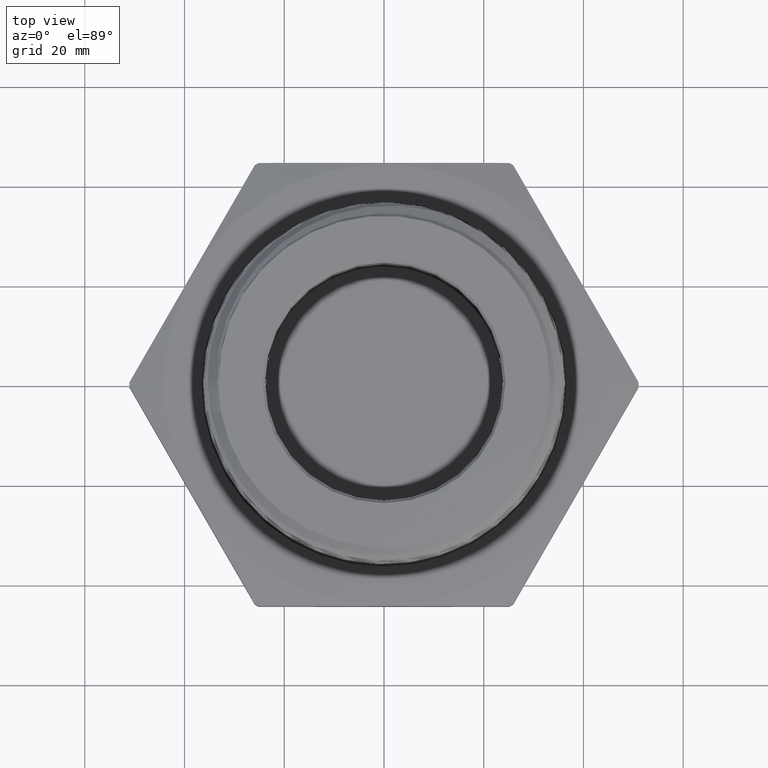
[diagram: clean part render]
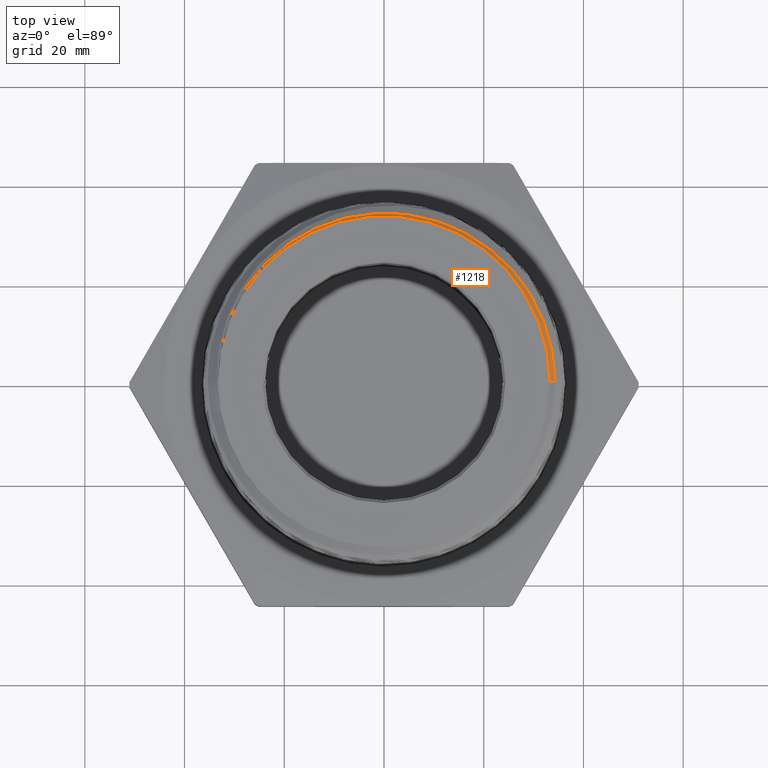
[diagram: same view with one face highlighted and labeled with its STEP entity id]
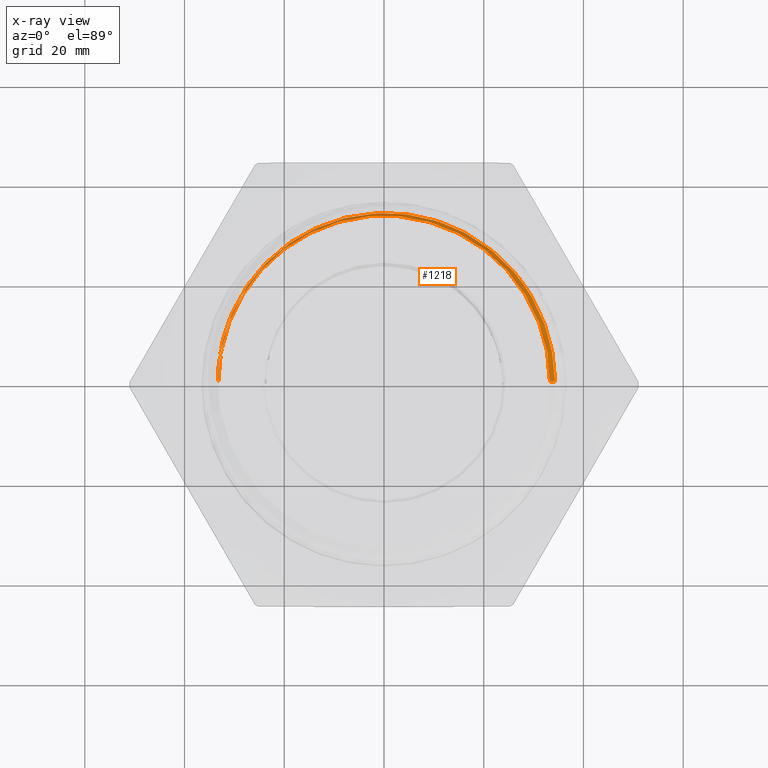
[diagram: x-ray of the same camera — body ghosted, the highlighted face saturated]
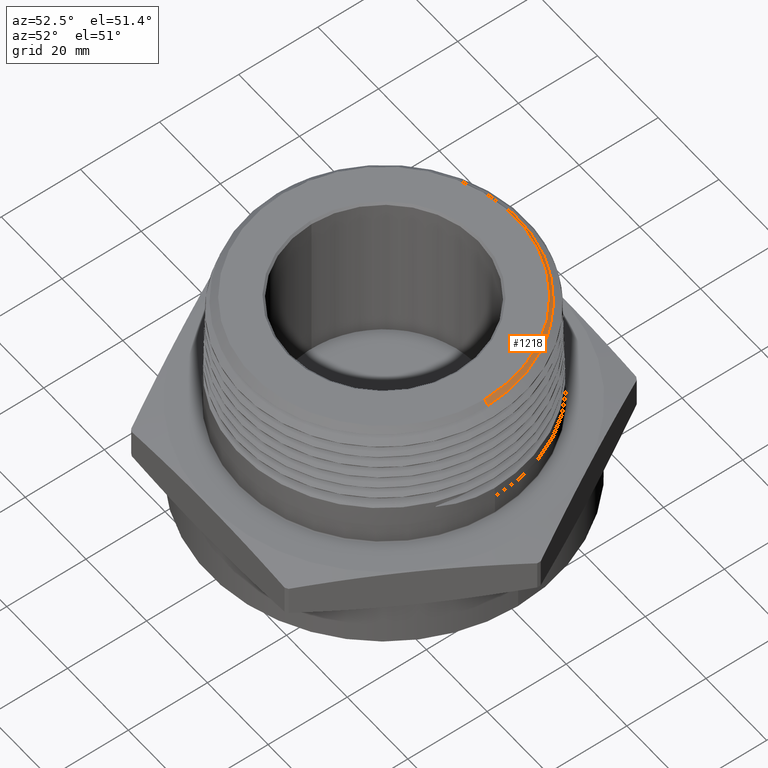
[diagram: same view with one face highlighted and labeled with its STEP entity id]
A machine part, top view. The second image highlights one B-rep face of the part: STEP entity #1218.
The next image is the same camera in x-ray: the body ghosted, the highlighted face saturated — about 0% of this face is hidden behind the body in this view.
A second angle (auxiliary view) of the same face is appended — the face is thin or edge-on in the first view.
In plain terms, the highlighted conical surface has half-angle 45 deg.
Its self-contained STEP definition (entity closure, byte-faithful):
#37 = CARTESIAN_POINT ( 'NONE',  ( -1.309765000000000100, 0.0000000000000000000, 1.729999999999999800 ) ) ;
#38 = CARTESIAN_POINT ( 'NONE',  ( 1.309765000000000100, 1.653900943077713700E-016, 1.729999999999999800 ) ) ;
#41 = CARTESIAN_POINT ( 'NONE',  ( 1.350563691224693400, 3.244069492476312400E-016, 1.689201308775306200 ) ) ;
#42 = CARTESIAN_POINT ( 'NONE',  ( -1.306956596995486200, 0.1079374020897158200, 1.728358873279563400 ) ) ;
#43 = CARTESIAN_POINT ( 'NONE',  ( -1.311368873181038200, -1.536664496436148200E-016, 1.728396126818961800 ) ) ;
#237 = CARTESIAN_POINT ( 'NONE',  ( 0.09171455139226268600, 1.328348164124692800, 1.708425787367620700 ) ) ;
#238 = CARTESIAN_POINT ( 'NONE',  ( -0.01499674576504651100, 1.332971324827752800, 1.709450535089585200 ) ) ;
#239 = CARTESIAN_POINT ( 'NONE',  ( -0.09962915556131633800, 1.328472396097577100, 1.710266008922226100 ) ) ;
#240 = CARTESIAN_POINT ( 'NONE',  ( -0.2045178724778831700, 1.312813820658020200, 1.711285472085118500 ) ) ;
#241 = CARTESIAN_POINT ( 'NONE',  ( -0.2254501201297382800, 1.309175857946777200, 1.711489515050243600 ) ) ;
#242 = CARTESIAN_POINT ( 'NONE',  ( -0.2672223711880851700, 1.300873673064138100, 1.711899536499993400 ) ) ;
#243 = CARTESIAN_POINT ( 'NONE',  ( -0.2881105984686753200, 1.296196745108849000, 1.712106226430594400 ) ) ;
#244 = CARTESIAN_POINT ( 'NONE',  ( -0.3502644105605982100, 1.280692346967210500, 1.712725269959481700 ) ) ;
#245 = CARTESIAN_POINT ( 'NONE',  ( -0.3908858841510702800, 1.268440780603415700, 1.713134560490398900 ) ) ;
#246 = CARTESIAN_POINT ( 'NONE',  ( -0.5103820960312883700, 1.226116626902534300, 1.714355627185536900 ) ) ;
#247 = CARTESIAN_POINT ( 'NONE',  ( -0.5869061454908270900, 1.190516024693061700, 1.715170198889191900 ) ) ;
#248 = CARTESIAN_POINT ( 'NONE',  ( -0.6785553947824517500, 1.136595056120337100, 1.716196526029136700 ) ) ;
#249 = CARTESIAN_POINT ( 'NONE',  ( -0.6967223633253463200, 1.125309764672333300, 1.716402690030068000 ) ) ;
#250 = CARTESIAN_POINT ( 'NONE',  ( -0.7324562631169324600, 1.101889326113928200, 1.716815284475095000 ) ) ;
#251 = CARTESIAN_POINT ( 'NONE',  ( -0.7499694778615492200, 1.089792127107236400, 1.717021340399600000 ) ) ;
#252 = CARTESIAN_POINT ( 'NONE',  ( -0.8014688204809044000, 1.052362458847585100, 1.717638765886303300 ) ) ;
#253 = CARTESIAN_POINT ( 'NONE',  ( -0.8344177493217346300, 1.025895297103959700, 1.718048327048187400 ) ) ;
#254 = CARTESIAN_POINT ( 'NONE',  ( -0.8975977870280595900, 0.9699877094381267300, 1.718864259484525400 ) ) ;
#255 = CARTESIAN_POINT ( 'NONE',  ( -0.9278283698502799400, 0.9405467181313209600, 1.719271330014622500 ) ) ;
#256 = CARTESIAN_POINT ( 'NONE',  ( -0.9855389948041972700, 0.8786558363991053800, 1.720093408768793600 ) ) ;
#257 = CARTESIAN_POINT ( 'NONE',  ( -1.013076711283218200, 0.8461340283151540500, 1.720507316225983600 ) ) ;
#258 = CARTESIAN_POINT ( 'NONE',  ( -1.091054843264708900, 0.7443578989606399700, 1.721749889967262500 ) ) ;
#259 = CARTESIAN_POINT ( 'NONE',  ( -1.135684543815285600, 0.6725675503749891600, 1.722569315257796100 ) ) ;
#260 = CARTESIAN_POINT ( 'NONE',  ( -1.191996973169151100, 0.5591877950740498100, 1.723798712832855800 ) ) ;
#261 = CARTESIAN_POINT ( 'NONE',  ( -1.208983547336436300, 0.5204389572300395200, 1.724208089083593600 ) ) ;
#262 = CARTESIAN_POINT ( 'NONE',  ( -1.239295579900556100, 0.4409806146601624700, 1.725037082598783100 ) ) ;
#263 = CARTESIAN_POINT ( 'NONE',  ( -1.252632852184172500, 0.4001629858635762900, 1.725455965367784100 ) ) ;
#264 = CARTESIAN_POINT ( 'NONE',  ( -1.286333874885571900, 0.2770088677711267700, 1.726698438830986100 ) ) ;
#265 = CARTESIAN_POINT ( 'NONE',  ( -1.300744609113325900, 0.1932935772440260400, 1.727524406184969300 ) ) ;
#266 = CARTESIAN_POINT ( 'NONE',  ( -1.306956596995486200, 0.1079374020897158200, 1.728358873279563400 ) ) ;
#268 = CARTESIAN_POINT ( 'NONE',  ( -1.311382881187556700, 0.03598164747442271500, 1.728382118812443300 ) ) ;
#269 = CARTESIAN_POINT ( 'NONE',  ( -1.311368873181038200, -1.536664496436148200E-016, 1.728396126818961800 ) ) ;
#270 = CARTESIAN_POINT ( 'NONE',  ( -1.543675872082448200, 0.0000000000000000000, 1.496089127917554300 ) ) ;
#271 = DIRECTION ( 'NONE',  ( -0.7071067811865512400, 0.0000000000000000000, -0.7071067811865438000 ) ) ;
#522 = VERTEX_POINT ( 'NONE', #37 ) ;
#523 = VERTEX_POINT ( 'NONE', #38 ) ;
#526 = VERTEX_POINT ( 'NONE', #41 ) ;
#527 = VERTEX_POINT ( 'NONE', #42 ) ;
#528 = VERTEX_POINT ( 'NONE', #43 ) ;
#613 = ORIENTED_EDGE ( 'NONE', *, *, #5800, .T. ) ;
#614 = ORIENTED_EDGE ( 'NONE', *, *, #5801, .T. ) ;
#615 = ORIENTED_EDGE ( 'NONE', *, *, #5802, .T. ) ;
#616 = ORIENTED_EDGE ( 'NONE', *, *, #5803, .T. ) ;
#617 = ORIENTED_EDGE ( 'NONE', *, *, #5804, .F. ) ;
#1218 = ADVANCED_FACE ( 'NONE', ( #5619 ), #5626, .T. ) ;
#4060 = DIRECTION ( 'NONE',  ( -1.000000000000000000, 0.0000000000000000000, 0.0000000000000000000 ) ) ;
#4061 = CARTESIAN_POINT ( 'NONE',  ( 0.0000000000000000000, 0.0000000000000000000, 1.496089127917554300 ) ) ;
#4062 = DIRECTION ( 'NONE',  ( -0.0000000000000000000, -0.0000000000000000000, -1.000000000000000000 ) ) ;
#4169 = DIRECTION ( 'NONE',  ( 0.7071067811865512400, 8.659560562354978500E-017, -0.7071067811865438000 ) ) ;
#4173 = CARTESIAN_POINT ( 'NONE',  ( 1.349762837397595400, 0.08450434578604820700, 1.690002162602404400 ) ) ;
#4174 = CARTESIAN_POINT ( 'NONE',  ( 1.350563691224693400, 3.244069492476312400E-016, 1.689201308775306200 ) ) ;
#4175 = CARTESIAN_POINT ( 'NONE',  ( 1.543675872082448200, 1.890457715666769000E-016, 1.496089127917554300 ) ) ;
#4176 = CARTESIAN_POINT ( 'NONE',  ( 0.0000000000000000000, 0.0000000000000000000, 1.729999999999999800 ) ) ;
#4177 = DIRECTION ( 'NONE',  ( -0.0000000000000000000, -0.0000000000000000000, -1.000000000000000000 ) ) ;
#4178 = DIRECTION ( 'NONE',  ( -1.000000000000000000, 0.0000000000000000000, 0.0000000000000000000 ) ) ;
#4179 = CARTESIAN_POINT ( 'NONE',  ( -1.309909852064304200, 0.07201835931294561800, 1.728372013349386100 ) ) ;
#4180 = CARTESIAN_POINT ( 'NONE',  ( -1.306956596995486200, 0.1079374020897158200, 1.728358873279563400 ) ) ;
#4181 = CARTESIAN_POINT ( 'NONE',  ( 1.341104256907360300, 0.1684355279537689800, 1.690799713596519400 ) ) ;
#4182 = CARTESIAN_POINT ( 'NONE',  ( 1.316106282519069500, 0.2934560802126151600, 1.692008989018303700 ) ) ;
#4183 = CARTESIAN_POINT ( 'NONE',  ( 1.305694349169339800, 0.3351252341417032500, 1.692418352082457400 ) ) ;
#4184 = CARTESIAN_POINT ( 'NONE',  ( 1.281220755459600200, 0.4164662511135125400, 1.693226067707147800 ) ) ;
#4185 = CARTESIAN_POINT ( 'NONE',  ( 1.267135210785622200, 0.4563303985312235900, 1.693626169311505300 ) ) ;
#4186 = CARTESIAN_POINT ( 'NONE',  ( 1.219432771856793700, 0.5735474346393219000, 1.694827956617043400 ) ) ;
#4187 = CARTESIAN_POINT ( 'NONE',  ( 1.180419075552897200, 0.6485462824612151500, 1.695632001903568900 ) ) ;
#4188 = CARTESIAN_POINT ( 'NONE',  ( 1.110634644927073400, 0.7561312510689068800, 1.696851453306697400 ) ) ;
#4189 = CARTESIAN_POINT ( 'NONE',  ( 1.085774410545164300, 0.7907006703701533500, 1.697258359931470300 ) ) ;
#4190 = CARTESIAN_POINT ( 'NONE',  ( 1.033201250272560300, 0.8569945930267588400, 1.698066444455027500 ) ) ;
#4191 = CARTESIAN_POINT ( 'NONE',  ( 1.005450526866272300, 0.8887780416383614900, 1.698467690880871100 ) ) ;
#4192 = CARTESIAN_POINT ( 'NONE',  ( 0.9470426943260703600, 0.9496382243776826400, 1.699271089438818100 ) ) ;
#4193 = CARTESIAN_POINT ( 'NONE',  ( 0.9163842164221122100, 0.9787136577917104900, 1.699675223925906500 ) ) ;
#4194 = CARTESIAN_POINT ( 'NONE',  ( 0.8681762191816327900, 1.020259033813018400, 1.700284323916814400 ) ) ;
#4195 = CARTESIAN_POINT ( 'NONE',  ( 0.8517363218515918700, 1.033762382645321300, 1.700487706098131600 ) ) ;
#4196 = CARTESIAN_POINT ( 'NONE',  ( 0.8181008239174223400, 1.060065284454391400, 1.700895473262225200 ) ) ;
#4197 = CARTESIAN_POINT ( 'NONE',  ( 0.8009274374334031100, 1.072843616075301000, 1.701099566706054700 ) ) ;
#4198 = CARTESIAN_POINT ( 'NONE',  ( 0.7140513174031200000, 1.134322295574820400, 1.702114942075380100 ) ) ;
#4199 = CARTESIAN_POINT ( 'NONE',  ( 0.6406914406757260300, 1.176365633214484700, 1.702924464488822000 ) ) ;
#4200 = CARTESIAN_POINT ( 'NONE',  ( 0.5442354695428911500, 1.220120290466635900, 1.703936761965307900 ) ) ;
#4201 = CARTESIAN_POINT ( 'NONE',  ( 0.5247042914417751100, 1.228427210602701400, 1.704139571710769000 ) ) ;
#4202 = CARTESIAN_POINT ( 'NONE',  ( 0.4851546564609126600, 1.244139465955828700, 1.704547665285982600 ) ) ;
#4203 = CARTESIAN_POINT ( 'NONE',  ( 0.4650964853966640400, 1.251558297664639100, 1.704753212224435300 ) ) ;
#4204 = CARTESIAN_POINT ( 'NONE',  ( 0.4044625571527247200, 1.272339617467157300, 1.705369142846784100 ) ) ;
#4205 = CARTESIAN_POINT ( 'NONE',  ( 0.3636368359490224100, 1.284168999903463600, 1.705776305820066800 ) ) ;
#4206 = CARTESIAN_POINT ( 'NONE',  ( 0.2811981091471098500, 1.303872942390651400, 1.706587932272621200 ) ) ;
#4207 = CARTESIAN_POINT ( 'NONE',  ( 0.2395847498606911200, 1.311745641385534200, 1.706994103688523000 ) ) ;
#4208 = CARTESIAN_POINT ( 'NONE',  ( 0.1765715717664634000, 1.320574865185109700, 1.707606717357305500 ) ) ;
#4209 = CARTESIAN_POINT ( 'NONE',  ( 0.1554682168944312700, 1.323020787826408200, 1.707811152877772900 ) ) ;
#4210 = CARTESIAN_POINT ( 'NONE',  ( 0.1130612592348629600, 1.326906656849583100, 1.708220481889520800 ) ) ;
#4889 = AXIS2_PLACEMENT_3D ( 'NONE', #4061, #4062, #4060 ) ;
#4936 = AXIS2_PLACEMENT_3D ( 'NONE', #4176, #4177, #4178 ) ;
#5528 = EDGE_LOOP ( 'NONE', ( #613, #614, #615, #616, #617 ) ) ;
#5619 = FACE_OUTER_BOUND ( 'NONE', #5528, .T. ) ;
#5626 = CONICAL_SURFACE ( 'NONE', #4889, 1.543675872082448200, 0.7853981633974536100 ) ;
#5707 = LINE ( 'NONE', #4175, #5714 ) ;
#5710 = CIRCLE ( 'NONE', #4936, 1.309765000000000100 ) ;
#5713 = LINE ( 'NONE', #270, #5716 ) ;
#5714 = VECTOR ( 'NONE', #4169, 39.37007874015748100 ) ;
#5716 = VECTOR ( 'NONE', #271, 39.37007874015748100 ) ;
#5800 = EDGE_CURVE ( 'NONE', #522, #523, #5710, .T. ) ;
#5801 = EDGE_CURVE ( 'NONE', #523, #526, #5707, .T. ) ;
#5802 = EDGE_CURVE ( 'NONE', #526, #527, #6603, .T. ) ;
#5803 = EDGE_CURVE ( 'NONE', #527, #528, #6601, .T. ) ;
#5804 = EDGE_CURVE ( 'NONE', #522, #528, #5713, .T. ) ;
#6601 = B_SPLINE_CURVE_WITH_KNOTS ( 'NONE', 3,
 ( #4180, #4179, #268, #269 ),
 .UNSPECIFIED., .F., .F.,
 ( 4, 4 ),
 ( 4.863610584788533200E-017, 0.002746248883832942300 ),
 .UNSPECIFIED. ) ;
#6603 = B_SPLINE_CURVE_WITH_KNOTS ( 'NONE', 3,
 ( #4174, #4173, #4181, #4182, #4183, #4184, #4185, #4186, #4187, #4188, #4189, #4190, #4191, #4192, #4193, #4194, #4195, #4196, #4197, #4198, #4199, #4200, #4201, #4202, #4203, #4204, #4205, #4206, #4207, #4208, #4209, #4210, #237, #238, #239, #240, #241, #242, #243, #244, #245, #246, #247, #248, #249, #250, #251, #252, #253, #254, #255, #256, #257, #258, #259, #260, #261, #262, #263, #264, #265, #266 ),
 .UNSPECIFIED., .F., .F.,
 ( 4, 2, 2, 2, 2, 2, 2, 2, 2, 2, 2, 2, 2, 2, 2, 2, 2, 2, 2, 2, 2, 2, 2, 2, 2, 2, 2, 2, 2, 2, 4 ),
 ( 0.1690200764778073400, 0.1755153509010259100, 0.1787629881126351600, 0.1820106253242444500, 0.1885058997474630100, 0.1917535369590723000, 0.1950011741706815800, 0.1982488113822908600, 0.1998726299880955200, 0.2014964485939001500, 0.2079917230171187400, 0.2096155416229234000, 0.2112393602287280200, 0.2144869974403373100, 0.2177346346519465900, 0.2193584532577512500, 0.2209822718635559000, 0.2274775462867744700, 0.2291013648925791200, 0.2307251834983837800, 0.2339728207099930900, 0.2404680951332116600, 0.2420919137390163100, 0.2437157323448209700, 0.2469633695564302800, 0.2502110067680395900, 0.2534586439796489000, 0.2599539184028675200, 0.2632015556144768300, 0.2664491928260861500, 0.2729444672493047700 ),
 .UNSPECIFIED. ) ;